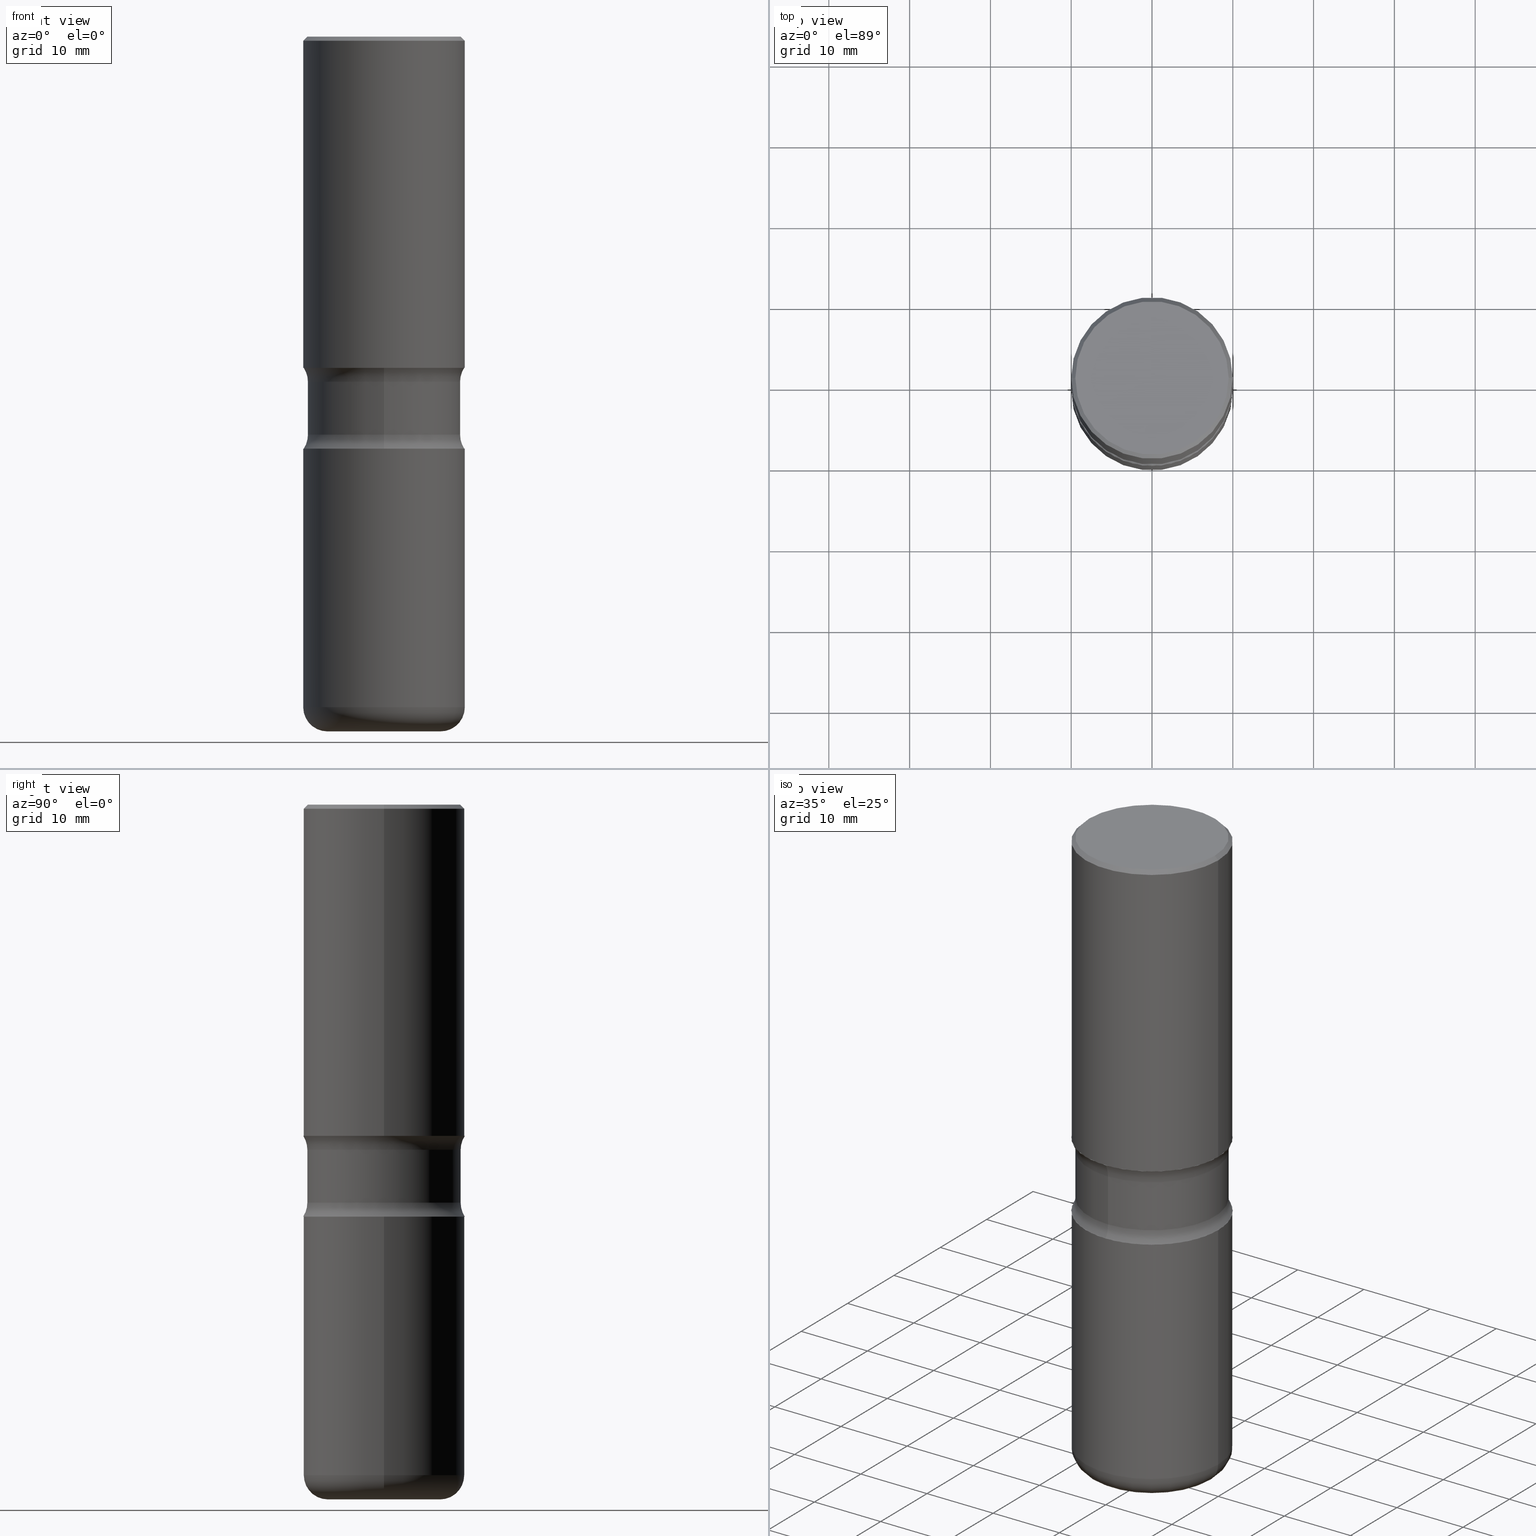
[diagram: canonical four-view strip — front | top / right | iso, engineering-drawing reading convention]
A machine part, canonical four-view strip (front | top / right | iso — engineering-drawing reading convention). The complete STEP part file that produces these views, byte-faithful:
ISO-10303-21;
HEADER;
FILE_DESCRIPTION (( 'STEP AP203' ),
    '1' );
FILE_NAME ('44991.STEP',
    '2024-03-02T04:23:52',
    ( '' ),
    ( '' ),
    'SwSTEP 2.0',
    'SolidWorks 2023',
    '' );
FILE_SCHEMA (( 'CONFIG_CONTROL_DESIGN' ));
ENDSEC;

DATA;
#1 = ORIENTED_EDGE ( 'NONE', *, *, #68, .T. ) ;
#2 = ORIENTED_EDGE ( 'NONE', *, *, #6, .F. ) ;
#3 = AXIS2_PLACEMENT_3D ( 'NONE', #395, #173, #190 ) ;
#4 = VECTOR ( 'NONE', #124, 39.37007874015748143 ) ;
#5 = CARTESIAN_POINT ( 'NONE',  ( -0.3937000000000004385, 2.797406750687517547E-15, -1.936584745033358417E-29 ) ) ;
#6 = EDGE_CURVE ( 'NONE', #76, #44, #375, .T. ) ;
#7 = ORIENTED_EDGE ( 'NONE', *, *, #443, .F. ) ;
#8 = CARTESIAN_POINT ( 'NONE',  ( 3.947231200063429727E-29, -5.635600029026721857E-15, -1.614100000000000090 ) ) ;
#9 = ORIENTED_EDGE ( 'NONE', *, *, #276, .T. ) ;
#10 = DIRECTION ( 'NONE',  ( 6.982962677686265922E-15, 1.000000000000000000, -3.562740511317534079E-15 ) ) ;
#11 = CIRCLE ( 'NONE', #240, 0.2756000000000004002 ) ;
#12 = AXIS2_PLACEMENT_3D ( 'NONE', #302, #79, #160 ) ;
#13 = CIRCLE ( 'NONE', #523, 0.3937000000000003830 ) ;
#14 = DIRECTION ( 'NONE',  ( 0.000000000000000000, 0.000000000000000000, 1.000000000000000000 ) ) ;
#15 = DIRECTION ( 'NONE',  ( -2.445468806185136877E-29, 3.491481338843145188E-15, 1.000000000000000000 ) ) ;
#16 = CC_DESIGN_DATE_AND_TIME_ASSIGNMENT ( #202, #379, ( #234 ) ) ;
#17 = CYLINDRICAL_SURFACE ( 'NONE', #265, 0.3937000000000003830 ) ;
#18 = FACE_OUTER_BOUND ( 'NONE', #341, .T. ) ;
#19 = CIRCLE ( 'NONE', #12, 0.3734999999999999432 ) ;
#20 = DATE_AND_TIME ( #145, #241 ) ;
#21 = DIRECTION ( 'NONE',  ( -1.000000000000000000, 6.982962677686265922E-15, -4.876176775795935793E-29 ) ) ;
#22 = CARTESIAN_POINT ( 'NONE',  ( -0.3937000000000003830, 2.797406750687517153E-15, -1.936584745033358137E-29 ) ) ;
#23 = ADVANCED_FACE ( 'NONE', ( #152 ), #456, .T. ) ;
#24 = DIRECTION ( 'NONE',  ( -2.445468806185136597E-29, 3.491481338843145583E-15, 1.000000000000000000 ) ) ;
#25 = PERSON_AND_ORGANIZATION_ROLE ( 'design_owner' ) ;
#26 = ORIENTED_EDGE ( 'NONE', *, *, #343, .T. ) ;
#27 = DIRECTION ( 'NONE',  ( 6.982962677686265922E-15, 1.000000000000000000, -3.562740511317534079E-15 ) ) ;
#28 = CIRCLE ( 'NONE', #490, 0.3937000000000004940 ) ;
#29 = AXIS2_PLACEMENT_3D ( 'NONE', #98, #262, #447 ) ;
#30 = COORDINATED_UNIVERSAL_TIME_OFFSET ( 5, 0, .BEHIND. ) ;
#31 = DIRECTION ( 'NONE',  ( 2.395708792001990434E-29, -3.562740511317534079E-15, -1.000000000000000000 ) ) ;
#32 = LINE ( 'NONE', #22, #525 ) ;
#33 = SHAPE_DEFINITION_REPRESENTATION ( #116, #389 ) ;
#34 = DIRECTION ( 'NONE',  ( -2.445468806185136597E-29, 3.491481338843145583E-15, 1.000000000000000000 ) ) ;
#35 = COORDINATED_UNIVERSAL_TIME_OFFSET ( 5, 0, .BEHIND. ) ;
#36 = DIRECTION ( 'NONE',  ( 1.000000000000000000, -6.860497997771530774E-15, 4.839926206449336526E-29 ) ) ;
#37 = EDGE_LOOP ( 'NONE', ( #209, #559 ) ) ;
#38 = CARTESIAN_POINT ( 'NONE',  ( 7.991058417971171713E-29, -1.140911357093774644E-14, -3.267700000000000049 ) ) ;
#39 = FACE_OUTER_BOUND ( 'NONE', #476, .T. ) ;
#40 = TOROIDAL_SURFACE ( 'NONE', #346, 0.2756000000000004002, 0.1181000000000000660 ) ;
#41 = AXIS2_PLACEMENT_3D ( 'NONE', #351, #519, #444 ) ;
#42 = AXIS2_PLACEMENT_3D ( 'NONE', #522, #132, #485 ) ;
#43 = ORIENTED_EDGE ( 'NONE', *, *, #398, .F. ) ;
#44 = VERTEX_POINT ( 'NONE', #331 ) ;
#45 = DIRECTION ( 'NONE',  ( 2.445468806185136597E-29, -3.491481338843145583E-15, -1.000000000000000000 ) ) ;
#46 = CARTESIAN_POINT ( 'NONE',  ( 4.890937612370289799E-31, -6.982962677686315028E-17, -0.02000000000000006981 ) ) ;
#47 = ORIENTED_EDGE ( 'NONE', *, *, #52, .F. ) ;
#48 = PERSON_AND_ORGANIZATION_ROLE ( 'classification_officer' ) ;
#49 = EDGE_CURVE ( 'NONE', #167, #304, #211, .T. ) ;
#50 = CIRCLE ( 'NONE', #385, 0.3937000000000002720 ) ;
#51 = PERSON ( 'UNSPECIFIED', 'UNSPECIFIED', 'UNSPECIFIED', ('UNSPECIFIED'), ('UNSPECIFIED'), ('UNSPECIFIED') ) ;
#52 = EDGE_CURVE ( 'NONE', #344, #513, #32, .T. ) ;
#53 = DIRECTION ( 'NONE',  ( 1.000000000000000000, -6.860497997771530774E-15, 4.839926206449336526E-29 ) ) ;
#54 = ORIENTED_EDGE ( 'NONE', *, *, #118, .T. ) ;
#55 = CARTESIAN_POINT ( 'NONE',  ( 4.746788003328820171E-29, -6.767459842010962398E-15, -1.939668069159901087 ) ) ;
#56 = DIRECTION ( 'NONE',  ( 2.438088387897960049E-29, -3.491481338843145188E-15, -1.000000000000000000 ) ) ;
#57 = EDGE_CURVE ( 'NONE', #167, #300, #337, .T. ) ;
#58 = VECTOR ( 'NONE', #409, 39.37007874015748143 ) ;
#59 = LOCAL_TIME ( 23, 23, 52.00000000000000000, #507 ) ;
#60 = CARTESIAN_POINT ( 'NONE',  ( 0.3937000000000003830, -2.749192406205085978E-15, 1.919750796630861853E-29 ) ) ;
#61 = DIRECTION ( 'NONE',  ( 1.000000000000000000, -6.982962677686270655E-15, 0.000000000000000000 ) ) ;
#62 = ORIENTED_EDGE ( 'NONE', *, *, #453, .F. ) ;
#63 = DIRECTION ( 'NONE',  ( 1.000000000000000000, -6.982962677686266711E-15, 4.876212485538972316E-29 ) ) ;
#64 = ADVANCED_FACE ( 'NONE', ( #496 ), #17, .T. ) ;
#65 = DIRECTION ( 'NONE',  ( 2.395708792001990434E-29, -3.562740511317534079E-15, -1.000000000000000000 ) ) ;
#66 = PERSON_AND_ORGANIZATION_ROLE ( 'design_supplier' ) ;
#67 = DIRECTION ( 'NONE',  ( -2.445468806185136597E-29, 3.491481338843145583E-15, 1.000000000000000000 ) ) ;
#68 = EDGE_CURVE ( 'NONE', #89, #364, #28, .T. ) ;
#69 = AXIS2_PLACEMENT_3D ( 'NONE', #366, #67, #418 ) ;
#70 = AXIS2_PLACEMENT_3D ( 'NONE', #181, #314, #131 ) ;
#71 = CARTESIAN_POINT ( 'NONE',  ( -3.131554243005659264E-46, 4.471029511141341874E-32, 1.280553747030123384E-17 ) ) ;
#72 = VERTEX_POINT ( 'NONE', #499 ) ;
#73 = DIRECTION ( 'NONE',  ( 1.000000000000000000, -6.982962677686266711E-15, 0.000000000000000000 ) ) ;
#74 = DIRECTION ( 'NONE',  ( -6.982962677686265133E-15, -1.000000000000000000, 0.000000000000000000 ) ) ;
#75 = PERSON_AND_ORGANIZATION ( #51, #154 ) ;
#76 = VERTEX_POINT ( 'NONE', #112 ) ;
#77 = PRODUCT ( '44991', '44991', '', ( #526 ) ) ;
#78 = LOCAL_TIME ( 23, 23, 52.00000000000000000, #35 ) ;
#79 = DIRECTION ( 'NONE',  ( 2.395708792001990434E-29, -3.562740511317534079E-15, -1.000000000000000000 ) ) ;
#80 = DIRECTION ( 'NONE',  ( -1.000000000000000000, 6.982962677686266711E-15, 0.000000000000000000 ) ) ;
#81 = CARTESIAN_POINT ( 'NONE',  ( -2.562396002167584581E-15, -0.3735000000000119336, -3.385799999999999255 ) ) ;
#82 = ORIENTED_EDGE ( 'NONE', *, *, #183, .F. ) ;
#83 = CALENDAR_DATE ( 2024, 1, 3 ) ;
#84 = CC_DESIGN_DATE_AND_TIME_ASSIGNMENT ( #129, #448, ( #376 ) ) ;
#85 = ORIENTED_EDGE ( 'NONE', *, *, #256, .T. ) ;
#86 = AXIS2_PLACEMENT_3D ( 'NONE', #100, #518, #263 ) ;
#87 = CARTESIAN_POINT ( 'NONE',  ( 4.910012269058518206E-29, -7.010196232129268988E-15, -2.007800000000000473 ) ) ;
#88 = EDGE_LOOP ( 'NONE', ( #7, #43, #436, #175 ) ) ;
#89 = VERTEX_POINT ( 'NONE', #464 ) ;
#90 = ORIENTED_EDGE ( 'NONE', *, *, #52, .T. ) ;
#91 = ORIENTED_EDGE ( 'NONE', *, *, #506, .F. ) ;
#92 = ADVANCED_FACE ( 'NONE', ( #417 ), #249, .F. ) ;
#93 = DIRECTION ( 'NONE',  ( 2.395708792001990434E-29, -3.562740511317534079E-15, -1.000000000000000000 ) ) ;
#94 = ORIENTED_EDGE ( 'NONE', *, *, #343, .F. ) ;
#95 = VECTOR ( 'NONE', #277, 39.37007874015748143 ) ;
#96 = CC_DESIGN_PERSON_AND_ORGANIZATION_ASSIGNMENT ( #339, #271, ( #544 ) ) ;
#97 = VECTOR ( 'NONE', #244, 39.37007874015748143 ) ;
#98 = CARTESIAN_POINT ( 'NONE',  ( 8.279868283981636714E-29, -1.182145751705512373E-14, -3.385800000000000143 ) ) ;
#99 = DIRECTION ( 'NONE',  ( -0.7071067811865459074, 2.468850131082240100E-15, -0.7071067811865491270 ) ) ;
#100 = CARTESIAN_POINT ( 'NONE',  ( 7.991058417971171713E-29, -1.140911357093774644E-14, -3.267700000000000049 ) ) ;
#101 = CARTESIAN_POINT ( 'NONE',  ( 2.608136560115860833E-15, 0.3734999999999940590, -1.682231930840100809 ) ) ;
#102 = AXIS2_PLACEMENT_3D ( 'NONE', #287, #56, #21 ) ;
#103 = VECTOR ( 'NONE', #99, 39.37007874015748143 ) ;
#104 = DIRECTION ( 'NONE',  ( -2.445468806185136597E-29, 3.491481338843145583E-15, 1.000000000000000000 ) ) ;
#105 = DIRECTION ( 'NONE',  ( -1.000000000000000000, 6.982962677686265922E-15, -4.876176775795935793E-29 ) ) ;
#106 = ADVANCED_FACE ( 'NONE', ( #111 ), #207, .T. ) ;
#107 = DIRECTION ( 'NONE',  ( -6.982962677686266711E-15, -1.000000000000000000, 3.491481338843145583E-15 ) ) ;
#108 = DIRECTION ( 'NONE',  ( 1.000000000000000000, -6.982962677686266711E-15, 4.876176775795935793E-29 ) ) ;
#109 = CARTESIAN_POINT ( 'NONE',  ( 8.279868283981636714E-29, -1.182145751705512373E-14, -3.385800000000000143 ) ) ;
#110 = APPROVAL_DATE_TIME ( #20, #193 ) ;
#111 = FACE_OUTER_BOUND ( 'NONE', #352, .T. ) ;
#112 = CARTESIAN_POINT ( 'NONE',  ( 0.3937000000000003830, -9.759388638334355360E-15, -2.007800000000000473 ) ) ;
#113 = AXIS2_PLACEMENT_3D ( 'NONE', #452, #188, #406 ) ;
#114 = FACE_OUTER_BOUND ( 'NONE', #88, .T. ) ;
#115 = CARTESIAN_POINT ( 'NONE',  ( 8.211298984437260765E-29, -1.191965265672483002E-14, -3.385800000000000143 ) ) ;
#116 = PRODUCT_DEFINITION_SHAPE ( 'NONE', 'NONE',  #234 ) ;
#117 = AXIS2_PLACEMENT_3D ( 'NONE', #528, #65, #407 ) ;
#118 = EDGE_CURVE ( 'NONE', #72, #89, #384, .T. ) ;
#119 = CARTESIAN_POINT ( 'NONE',  ( -2.700978061722613781E-15, -0.3937000000000058231, -1.614099999999998536 ) ) ;
#120 = ORIENTED_EDGE ( 'NONE', *, *, #148, .F. ) ;
#121 = EDGE_LOOP ( 'NONE', ( #47, #221, #85, #381 ) ) ;
#122 = TOROIDAL_SURFACE ( 'NONE', #279, 0.4985000000000001097, 0.1250000000000001388 ) ;
#123 = ORIENTED_EDGE ( 'NONE', *, *, #453, .T. ) ;
#124 = DIRECTION ( 'NONE',  ( -2.445468806185136877E-29, 3.491481338843145188E-15, 1.000000000000000000 ) ) ;
#125 = ORIENTED_EDGE ( 'NONE', *, *, #408, .F. ) ;
#126 = CARTESIAN_POINT ( 'NONE',  ( -2.631687031945119691E-15, -0.3735000000000057718, -1.682231930840098144 ) ) ;
#127 = APPLICATION_CONTEXT ( 'configuration controlled 3d designs of mechanical parts and assemblies' ) ;
#128 = DIRECTION ( 'NONE',  ( 6.982962677686265133E-15, 1.000000000000000000, -3.469453890861392812E-15 ) ) ;
#129 = DATE_AND_TIME ( #350, #516 ) ;
#130 = AXIS2_PLACEMENT_3D ( 'NONE', #185, #107, #532 ) ;
#131 = DIRECTION ( 'NONE',  ( -6.982962677686268288E-15, -1.000000000000000000, 0.000000000000000000 ) ) ;
#132 = DIRECTION ( 'NONE',  ( 2.395708792001990434E-29, -3.562740511317534079E-15, -1.000000000000000000 ) ) ;
#133 = TOROIDAL_SURFACE ( 'NONE', #422, 0.4985000000000001097, 0.1250000000000001665 ) ;
#134 = CIRCLE ( 'NONE', #153, 0.1181000000000001077 ) ;
#135 = UNCERTAINTY_MEASURE_WITH_UNIT (LENGTH_MEASURE( 1.000000000000000082E-05 ), #362, 'distance_accuracy_value', 'NONE');
#136 = CARTESIAN_POINT ( 'NONE',  ( -2.631687031945112197E-15, -0.3735000000000067710, -1.939668069159899533 ) ) ;
#137 = LINE ( 'NONE', #402, #501 ) ;
#138 = ADVANCED_FACE ( 'NONE', ( #272 ), #498, .T. ) ;
#139 = CARTESIAN_POINT ( 'NONE',  ( 4.910012269058518206E-29, -7.010196232129268988E-15, -2.007800000000000473 ) ) ;
#140 = FACE_OUTER_BOUND ( 'NONE', #176, .T. ) ;
#141 = DIRECTION ( 'NONE',  ( -2.395708792001989873E-29, 3.562740511317534079E-15, 1.000000000000000000 ) ) ;
#142 = ORIENTED_EDGE ( 'NONE', *, *, #213, .F. ) ;
#143 = DATE_AND_TIME ( #83, #469 ) ;
#144 = FACE_OUTER_BOUND ( 'NONE', #260, .T. ) ;
#145 = CALENDAR_DATE ( 2024, 1, 3 ) ;
#146 = ORIENTED_EDGE ( 'NONE', *, *, #289, .F. ) ;
#147 = DIRECTION ( 'NONE',  ( 1.000000000000000000, -6.982962677686269866E-15, 0.000000000000000000 ) ) ;
#148 = EDGE_CURVE ( 'NONE', #304, #167, #459, .T. ) ;
#149 = DIRECTION ( 'NONE',  ( -2.445468806185136597E-29, 3.491481338843145583E-15, 1.000000000000000000 ) ) ;
#150 = APPROVAL_ROLE ( '' ) ;
#151 = DIRECTION ( 'NONE',  ( 1.000000000000000000, -6.982962677686266711E-15, 4.876212485538972316E-29 ) ) ;
#152 = FACE_OUTER_BOUND ( 'NONE', #413, .T. ) ;
#153 = AXIS2_PLACEMENT_3D ( 'NONE', #219, #397, #317 ) ;
#154 = ORGANIZATION ( 'UNSPECIFIED', 'UNSPECIFIED', '' ) ;
#155 = DIRECTION ( 'NONE',  ( 2.395708792001990434E-29, -3.562740511317534079E-15, -1.000000000000000000 ) ) ;
#156 = CARTESIAN_POINT ( 'NONE',  ( 0.000000000000000000, 0.000000000000000000, 0.000000000000000000 ) ) ;
#157 = APPROVAL_STATUS ( 'not_yet_approved' ) ;
#158 = DIRECTION ( 'NONE',  ( -2.445468806185136877E-29, 3.491481338843145188E-15, 1.000000000000000000 ) ) ;
#159 = ADVANCED_FACE ( 'NONE', ( #140 ), #324, .T. ) ;
#160 = DIRECTION ( 'NONE',  ( 6.982962677686264344E-15, 1.000000000000000000, -3.657092360996336845E-15 ) ) ;
#161 = CALENDAR_DATE ( 2024, 1, 3 ) ;
#162 = DIRECTION ( 'NONE',  ( -1.000000000000000000, 6.982962677686265922E-15, -4.883557194083112901E-29 ) ) ;
#163 = EDGE_CURVE ( 'NONE', #510, #421, #13, .T. ) ;
#164 = ORIENTED_EDGE ( 'NONE', *, *, #348, .F. ) ;
#165 = CIRCLE ( 'NONE', #483, 0.3937000000000002164 ) ;
#166 = ORIENTED_EDGE ( 'NONE', *, *, #398, .T. ) ;
#167 = VERTEX_POINT ( 'NONE', #546 ) ;
#168 = EDGE_LOOP ( 'NONE', ( #345, #90, #433, #446 ) ) ;
#169 = APPROVAL ( #184, 'UNSPECIFIED' ) ;
#170 = CIRCLE ( 'NONE', #450, 0.3937000000000004385 ) ;
#171 = AXIS2_PLACEMENT_3D ( 'NONE', #474, #162, #74 ) ;
#172 = CC_DESIGN_SECURITY_CLASSIFICATION ( #376, ( #544 ) ) ;
#173 = DIRECTION ( 'NONE',  ( 2.395708792001990434E-29, -3.562740511317534079E-15, -1.000000000000000000 ) ) ;
#174 = COORDINATED_UNIVERSAL_TIME_OFFSET ( 5, 0, .BEHIND. ) ;
#175 = ORIENTED_EDGE ( 'NONE', *, *, #365, .T. ) ;
#176 = EDGE_LOOP ( 'NONE', ( #62, #292, #253, #517 ) ) ;
#177 = ADVANCED_FACE ( 'NONE', ( #462 ), #40, .T. ) ;
#178 = AXIS2_PLACEMENT_3D ( 'NONE', #109, #194, #369 ) ;
#179 = AXIS2_PLACEMENT_3D ( 'NONE', #360, #232, #227 ) ;
#180 = DIRECTION ( 'NONE',  ( 1.000000000000000000, 0.000000000000000000, 0.000000000000000000 ) ) ;
#181 = CARTESIAN_POINT ( 'NONE',  ( 3.481006894826652454E-15, 0.4984999999999933928, -1.939668069159902863 ) ) ;
#182 = ADVANCED_FACE ( 'NONE', ( #540 ), #218, .F. ) ;
#183 = EDGE_CURVE ( 'NONE', #44, #76, #420, .T. ) ;
#184 = APPROVAL_STATUS ( 'not_yet_approved' ) ;
#185 = CARTESIAN_POINT ( 'NONE',  ( 0.2756000000000004002, -1.333361808490808455E-14, -3.267700000000000049 ) ) ;
#186 = CARTESIAN_POINT ( 'NONE',  ( 0.000000000000000000, 0.000000000000000000, 0.000000000000000000 ) ) ;
#187 = PLANE ( 'NONE',  #354 ) ;
#188 = DIRECTION ( 'NONE',  ( -2.445468806185136597E-29, 3.491481338843145583E-15, 1.000000000000000000 ) ) ;
#189 = CARTESIAN_POINT ( 'NONE',  ( 7.991058417971169471E-29, -1.140911357093774486E-14, -3.267699999999999605 ) ) ;
#190 = DIRECTION ( 'NONE',  ( 6.982962677686265922E-15, 1.000000000000000000, -2.925673888797068924E-15 ) ) ;
#191 = ADVANCED_FACE ( 'NONE', ( #530 ), #246, .F. ) ;
#192 = CARTESIAN_POINT ( 'NONE',  ( 2.608136560115867538E-15, 0.3734999999999932263, -1.939668069159902419 ) ) ;
#193 = APPROVAL ( #419, 'UNSPECIFIED' ) ;
#194 = DIRECTION ( 'NONE',  ( 2.438088387897960049E-29, -3.491481338843145188E-15, -1.000000000000000000 ) ) ;
#195 = CLOSED_SHELL ( 'NONE', ( #23, #259, #355, #177, #520, #548 ) ) ;
#196 = AXIS2_PLACEMENT_3D ( 'NONE', #512, #342, #296 ) ;
#197 = FACE_OUTER_BOUND ( 'NONE', #542, .T. ) ;
#198 = DIRECTION ( 'NONE',  ( 2.395708792001990434E-29, -3.562740511317534079E-15, -1.000000000000000000 ) ) ;
#199 = DIRECTION ( 'NONE',  ( 1.000000000000000000, -6.982962677686269077E-15, 0.000000000000000000 ) ) ;
#200 = DIMENSIONAL_EXPONENTS ( 1.000000000000000000, 0.000000000000000000, 0.000000000000000000, 0.000000000000000000, 0.000000000000000000, 0.000000000000000000, 0.000000000000000000 ) ;
#201 = DIRECTION ( 'NONE',  ( 2.395708792001990434E-29, -3.562740511317534079E-15, -1.000000000000000000 ) ) ;
#202 = DATE_AND_TIME ( #377, #78 ) ;
#203 = ADVANCED_FACE ( 'NONE', ( #322 ), #122, .F. ) ;
#204 = VERTEX_POINT ( 'NONE', #101 ) ;
#205 = EDGE_LOOP ( 'NONE', ( #477, #504, #541, #308 ) ) ;
#206 = CARTESIAN_POINT ( 'NONE',  ( 4.890937612370289799E-31, -6.982962677686315028E-17, -0.02000000000000006981 ) ) ;
#207 = CONICAL_SURFACE ( 'NONE', #543, 0.3937000000000002164, 0.7853981633974460586 ) ;
#208 = CYLINDRICAL_SURFACE ( 'NONE', #41, 0.3937000000000004385 ) ;
#209 = ORIENTED_EDGE ( 'NONE', *, *, #163, .T. ) ;
#210 = CIRCLE ( 'NONE', #171, 0.1250000000000001665 ) ;
#211 = CIRCLE ( 'NONE', #427, 0.3737000000000002542 ) ;
#212 = ORIENTED_EDGE ( 'NONE', *, *, #264, .F. ) ;
#213 = EDGE_CURVE ( 'NONE', #282, #72, #11, .T. ) ;
#214 = EDGE_LOOP ( 'NONE', ( #441, #560 ) ) ;
#215 = DIRECTION ( 'NONE',  ( -2.445468806185136597E-29, 3.491481338843145583E-15, 1.000000000000000000 ) ) ;
#216 = AXIS2_PLACEMENT_3D ( 'NONE', #87, #93, #128 ) ;
#217 = EDGE_LOOP ( 'NONE', ( #555, #9, #396, #509 ) ) ;
#218 = PLANE ( 'NONE',  #102 ) ;
#219 = CARTESIAN_POINT ( 'NONE',  ( -0.2756000000000004002, -9.450857791182906696E-15, -3.267700000000000049 ) ) ;
#220 = EDGE_CURVE ( 'NONE', #89, #76, #137, .T. ) ;
#221 = ORIENTED_EDGE ( 'NONE', *, *, #527, .T. ) ;
#222 = DIRECTION ( 'NONE',  ( -2.445468806185136597E-29, 3.491481338843145583E-15, 1.000000000000000000 ) ) ;
#223 = APPROVAL_ROLE ( '' ) ;
#224 =( LENGTH_UNIT ( ) NAMED_UNIT ( * ) SI_UNIT ( $, .METRE. ) );
#225 = DIRECTION ( 'NONE',  ( 6.982962677686265922E-15, 1.000000000000000000, -3.657092360996336056E-15 ) ) ;
#226 = CC_DESIGN_APPROVAL ( #193, ( #234 ) ) ;
#227 = DIRECTION ( 'NONE',  ( 6.982962677686265922E-15, 1.000000000000000000, -3.562740511317534079E-15 ) ) ;
#228 = DIRECTION ( 'NONE',  ( 1.000000000000000000, -6.982962677686265922E-15, 0.000000000000000000 ) ) ;
#229 = EDGE_LOOP ( 'NONE', ( #303, #298, #54, #94 ) ) ;
#230 = CARTESIAN_POINT ( 'NONE',  ( 0.3937000000000002164, -2.770807688499516917E-15, -0.02000000000000006981 ) ) ;
#231 = SECURITY_CLASSIFICATION_LEVEL ( 'unclassified' ) ;
#232 = DIRECTION ( 'NONE',  ( 2.395708792001990434E-29, -3.562740511317534079E-15, -1.000000000000000000 ) ) ;
#233 = AXIS2_PLACEMENT_3D ( 'NONE', #8, #222, #399 ) ;
#234 = PRODUCT_DEFINITION ( 'UNKNOWN', '', #544, #414 ) ;
#235 = COORDINATED_UNIVERSAL_TIME_OFFSET ( 5, 0, .BEHIND. ) ;
#236 = CC_DESIGN_PERSON_AND_ORGANIZATION_ASSIGNMENT ( #392, #48, ( #376 ) ) ;
#237 = DIRECTION ( 'NONE',  ( -2.438088387897960049E-29, 3.491481338843145188E-15, 1.000000000000000000 ) ) ;
#238 = LINE ( 'NONE', #482, #103 ) ;
#239 = DIRECTION ( 'NONE',  ( -2.445468806185136597E-29, 3.491481338843145583E-15, 1.000000000000000000 ) ) ;
#240 = AXIS2_PLACEMENT_3D ( 'NONE', #405, #104, #61 ) ;
#241 = LOCAL_TIME ( 23, 23, 52.00000000000000000, #30 ) ;
#242 = ADVANCED_FACE ( 'NONE', ( #318 ), #270, .F. ) ;
#243 = ORIENTED_EDGE ( 'NONE', *, *, #326, .F. ) ;
#244 = DIRECTION ( 'NONE',  ( 2.395708792001990154E-29, -3.562740511317534079E-15, -1.000000000000000000 ) ) ;
#245 = ORIENTED_EDGE ( 'NONE', *, *, #443, .T. ) ;
#246 = TOROIDAL_SURFACE ( 'NONE', #179, 0.4985000000000001097, 0.1250000000000001665 ) ;
#247 = EDGE_CURVE ( 'NONE', #416, #344, #170, .T. ) ;
#248 = CARTESIAN_POINT ( 'NONE',  ( 2.749192406205125026E-15, 0.3936999999999947764, -1.614100000000001867 ) ) ;
#249 = TOROIDAL_SURFACE ( 'NONE', #552, 0.4985000000000001097, 0.1250000000000001388 ) ;
#250 = VERTEX_POINT ( 'NONE', #136 ) ;
#251 = FACE_OUTER_BOUND ( 'NONE', #325, .T. ) ;
#252 = DIRECTION ( 'NONE',  ( 6.982962677686265922E-15, 1.000000000000000000, -3.562740511317534079E-15 ) ) ;
#253 = ORIENTED_EDGE ( 'NONE', *, *, #408, .T. ) ;
#254 = DIRECTION ( 'NONE',  ( -1.000000000000000000, 6.982962677686266711E-15, 0.000000000000000000 ) ) ;
#255 = ORIENTED_EDGE ( 'NONE', *, *, #220, .F. ) ;
#256 = EDGE_CURVE ( 'NONE', #416, #300, #315, .T. ) ;
#257 = ORIENTED_EDGE ( 'NONE', *, *, #506, .T. ) ;
#258 = AXIS2_PLACEMENT_3D ( 'NONE', #454, #149, #465 ) ;
#259 = ADVANCED_FACE ( 'NONE', ( #486 ), #388, .T. ) ;
#260 = EDGE_LOOP ( 'NONE', ( #146, #142 ) ) ;
#261 = ORIENTED_EDGE ( 'NONE', *, *, #294, .T. ) ;
#262 = DIRECTION ( 'NONE',  ( -2.445468806185136597E-29, 3.491481338843145583E-15, 1.000000000000000000 ) ) ;
#263 = DIRECTION ( 'NONE',  ( 1.000000000000000000, -6.982962677686264344E-15, 4.883557194083112340E-29 ) ) ;
#264 = EDGE_CURVE ( 'NONE', #481, #250, #403, .T. ) ;
#265 = AXIS2_PLACEMENT_3D ( 'NONE', #186, #533, #108 ) ;
#266 = CARTESIAN_POINT ( 'NONE',  ( -0.3737000000000002542, 2.644447966039791030E-15, 1.280553747028286201E-17 ) ) ;
#267 = APPROVAL_PERSON_ORGANIZATION ( #316, #169, #223 ) ;
#268 = DIRECTION ( 'NONE',  ( -2.445468806185136597E-29, 3.491481338843145583E-15, 1.000000000000000000 ) ) ;
#269 = APPROVAL ( #157, 'UNSPECIFIED' ) ;
#270 = PLANE ( 'NONE',  #330 ) ;
#271 = PERSON_AND_ORGANIZATION_ROLE ( 'creator' ) ;
#272 = FACE_OUTER_BOUND ( 'NONE', #121, .T. ) ;
#273 = VERTEX_POINT ( 'NONE', #126 ) ;
#274 = PLANE ( 'NONE',  #411 ) ;
#275 = CARTESIAN_POINT ( 'NONE',  ( 4.910012269058518206E-29, -7.010196232129268988E-15, -2.007800000000000473 ) ) ;
#276 = EDGE_CURVE ( 'NONE', #282, #364, #134, .T. ) ;
#277 = DIRECTION ( 'NONE',  ( 0.7071067811865459074, -7.319954787623249734E-15, -0.7071067811865491270 ) ) ;
#278 = AXIS2_PLACEMENT_3D ( 'NONE', #432, #45, #254 ) ;
#279 = AXIS2_PLACEMENT_3D ( 'NONE', #493, #449, #10 ) ;
#280 = DIRECTION ( 'NONE',  ( 6.860497997771532351E-15, 1.000000000000000000, 0.000000000000000000 ) ) ;
#281 = PERSON_AND_ORGANIZATION_ROLE ( 'creator' ) ;
#282 = VERTEX_POINT ( 'NONE', #353 ) ;
#283 = ORIENTED_EDGE ( 'NONE', *, *, #527, .F. ) ;
#284 = APPROVAL_DATE_TIME ( #143, #169 ) ;
#285 = DIRECTION ( 'NONE',  ( 6.982962677686265922E-15, 1.000000000000000000, -2.925673888797068924E-15 ) ) ;
#286 = DIRECTION ( 'NONE',  ( -2.445468806185136597E-29, 3.491481338843145583E-15, 1.000000000000000000 ) ) ;
#287 = CARTESIAN_POINT ( 'NONE',  ( 2.609533152651358987E-15, 0.3737000000000002542, -1.298363807590533784E-15 ) ) ;
#288 = EDGE_CURVE ( 'NONE', #273, #204, #333, .T. ) ;
#289 = EDGE_CURVE ( 'NONE', #72, #282, #299, .T. ) ;
#290 = APPLICATION_CONTEXT ( 'configuration controlled 3d designs of mechanical parts and assemblies' ) ;
#291 = CIRCLE ( 'NONE', #117, 0.3937000000000002720 ) ;
#292 = ORIENTED_EDGE ( 'NONE', *, *, #288, .T. ) ;
#293 = ORIENTED_EDGE ( 'NONE', *, *, #57, .F. ) ;
#294 = EDGE_CURVE ( 'NONE', #250, #481, #461, .T. ) ;
#295 = CC_DESIGN_PERSON_AND_ORGANIZATION_ASSIGNMENT ( #75, #25, ( #77 ) ) ;
#296 = DIRECTION ( 'NONE',  ( 6.982962677686265922E-15, 1.000000000000000000, -3.562740511317534079E-15 ) ) ;
#297 = ORIENTED_EDGE ( 'NONE', *, *, #247, .F. ) ;
#298 = ORIENTED_EDGE ( 'NONE', *, *, #213, .T. ) ;
#299 = CIRCLE ( 'NONE', #29, 0.2756000000000004002 ) ;
#300 = VERTEX_POINT ( 'NONE', #401 ) ;
#301 = APPROVAL_PERSON_ORGANIZATION ( #549, #269, #150 ) ;
#302 = CARTESIAN_POINT ( 'NONE',  ( 4.130045983377031678E-29, -5.850281682941861671E-15, -1.682231930840099476 ) ) ;
#303 = ORIENTED_EDGE ( 'NONE', *, *, #276, .F. ) ;
#304 = VERTEX_POINT ( 'NONE', #266 ) ;
#305 = CYLINDRICAL_SURFACE ( 'NONE', #3, 0.3734999999999999987 ) ;
#306 = ORIENTED_EDGE ( 'NONE', *, *, #435, .F. ) ;
#307 = DIRECTION ( 'NONE',  ( 1.000000000000000000, -6.982962677686266711E-15, 0.000000000000000000 ) ) ;
#308 = ORIENTED_EDGE ( 'NONE', *, *, #264, .T. ) ;
#309 = EDGE_CURVE ( 'NONE', #204, #426, #210, .T. ) ;
#310 = CARTESIAN_POINT ( 'NONE',  ( -3.419958251889067047E-15, -0.4985000000000058828, -1.682231930840097700 ) ) ;
#311 = CONICAL_SURFACE ( 'NONE', #278, 0.3937000000000002164, 0.7853981633974460586 ) ;
#312 = AXIS2_PLACEMENT_3D ( 'NONE', #511, #442, #359 ) ;
#313 = DIRECTION ( 'NONE',  ( 1.000000000000000000, -6.982962677686265922E-15, 4.876176775795935793E-29 ) ) ;
#314 = DIRECTION ( 'NONE',  ( -1.000000000000000000, 6.982962677686265922E-15, -4.883557194083112901E-29 ) ) ;
#315 = LINE ( 'NONE', #60, #58 ) ;
#316 = PERSON_AND_ORGANIZATION ( #51, #154 ) ;
#317 = DIRECTION ( 'NONE',  ( -1.000000000000000000, 7.105427357600997914E-15, 0.000000000000000000 ) ) ;
#318 = FACE_OUTER_BOUND ( 'NONE', #37, .T. ) ;
#319 = CC_DESIGN_PERSON_AND_ORGANIZATION_ASSIGNMENT ( #539, #281, ( #234 ) ) ;
#320 = CIRCLE ( 'NONE', #258, 0.3937000000000004940 ) ;
#321 = AXIS2_PLACEMENT_3D ( 'NONE', #404, #14, #180 ) ;
#322 = FACE_OUTER_BOUND ( 'NONE', #205, .T. ) ;
#323 =( NAMED_UNIT ( * ) PLANE_ANGLE_UNIT ( ) SI_UNIT ( $, .RADIAN. ) );
#324 = CYLINDRICAL_SURFACE ( 'NONE', #410, 0.3734999999999999987 ) ;
#325 = EDGE_LOOP ( 'NONE', ( #387, #494, #390, #243 ) ) ;
#326 = EDGE_CURVE ( 'NONE', #304, #513, #238, .T. ) ;
#327 = ORIENTED_EDGE ( 'NONE', *, *, #348, .T. ) ;
#328 = DIRECTION ( 'NONE',  ( 6.982962677686265922E-15, 1.000000000000000000, -3.469453890861393601E-15 ) ) ;
#329 = DATE_AND_TIME ( #161, #59 ) ;
#330 = AXIS2_PLACEMENT_3D ( 'NONE', #357, #141, #455 ) ;
#331 = CARTESIAN_POINT ( 'NONE',  ( -0.3937000000000003830, -6.412248150845989772E-15, -2.007800000000000473 ) ) ;
#332 =( GEOMETRIC_REPRESENTATION_CONTEXT ( 3 ) GLOBAL_UNCERTAINTY_ASSIGNED_CONTEXT ( ( #135 ) ) GLOBAL_UNIT_ASSIGNED_CONTEXT ( ( #362, #323, #400 ) ) REPRESENTATION_CONTEXT ( 'NONE', 'WORKASPACE' ) );
#333 = CIRCLE ( 'NONE', #42, 0.3734999999999999432 ) ;
#334 = CARTESIAN_POINT ( 'NONE',  ( 3.947231200063429727E-29, -5.635600029026721857E-15, -1.614100000000000090 ) ) ;
#335 = APPROVAL_DATE_TIME ( #329, #269 ) ;
#336 = DIRECTION ( 'NONE',  ( 2.445468806185136597E-29, -3.491481338843145583E-15, -1.000000000000000000 ) ) ;
#337 = LINE ( 'NONE', #230, #95 ) ;
#338 = LINE ( 'NONE', #472, #553 ) ;
#339 = PERSON_AND_ORGANIZATION ( #51, #154 ) ;
#340 = CIRCLE ( 'NONE', #216, 0.3937000000000003830 ) ;
#341 = EDGE_LOOP ( 'NONE', ( #363, #424 ) ) ;
#342 = DIRECTION ( 'NONE',  ( 2.395708792001989873E-29, -3.562740511317534079E-15, -1.000000000000000000 ) ) ;
#343 = EDGE_CURVE ( 'NONE', #364, #89, #320, .T. ) ;
#344 = VERTEX_POINT ( 'NONE', #415 ) ;
#345 = ORIENTED_EDGE ( 'NONE', *, *, #247, .T. ) ;
#346 = AXIS2_PLACEMENT_3D ( 'NONE', #38, #34, #438 ) ;
#347 = EDGE_LOOP ( 'NONE', ( #297, #283 ) ) ;
#348 = EDGE_CURVE ( 'NONE', #429, #426, #291, .T. ) ;
#349 = CARTESIAN_POINT ( 'NONE',  ( -3.419958251889060736E-15, -0.4985000000000067710, -1.939668069159899089 ) ) ;
#350 = CALENDAR_DATE ( 2024, 1, 3 ) ;
#351 = CARTESIAN_POINT ( 'NONE',  ( 0.000000000000000000, 0.000000000000000000, 0.000000000000000000 ) ) ;
#352 = EDGE_LOOP ( 'NONE', ( #293, #120, #514, #437 ) ) ;
#353 = CARTESIAN_POINT ( 'NONE',  ( -0.2756000000000004002, -9.237454278775255057E-15, -3.385800000000000143 ) ) ;
#354 = AXIS2_PLACEMENT_3D ( 'NONE', #139, #495, #105 ) ;
#355 = ADVANCED_FACE ( 'NONE', ( #144 ), #497, .T. ) ;
#356 = AXIS2_PLACEMENT_3D ( 'NONE', #71, #374, #151 ) ;
#357 = CARTESIAN_POINT ( 'NONE',  ( 4.910012269058518206E-29, -7.010196232129268988E-15, -2.007800000000000473 ) ) ;
#358 = APPLICATION_PROTOCOL_DEFINITION ( 'international standard', 'config_control_design', 1994, #127 ) ;
#359 = DIRECTION ( 'NONE',  ( 6.982962677686265922E-15, 1.000000000000000000, -3.657092360996336056E-15 ) ) ;
#360 = CARTESIAN_POINT ( 'NONE',  ( 4.161536693090229815E-29, -5.805185194292673437E-15, -1.682231930840099476 ) ) ;
#361 = AXIS2_PLACEMENT_3D ( 'NONE', #349, #36, #391 ) ;
#362 =( CONVERSION_BASED_UNIT ( 'INCH', #529 ) LENGTH_UNIT ( ) NAMED_UNIT ( #200 ) );
#363 = ORIENTED_EDGE ( 'NONE', *, *, #6, .T. ) ;
#364 = VERTEX_POINT ( 'NONE', #545 ) ;
#365 = EDGE_CURVE ( 'NONE', #426, #429, #50, .T. ) ;
#366 = CARTESIAN_POINT ( 'NONE',  ( 0.000000000000000000, 0.000000000000000000, 0.000000000000000000 ) ) ;
#367 = EDGE_LOOP ( 'NONE', ( #166, #123, #212, #125 ) ) ;
#368 = ORIENTED_EDGE ( 'NONE', *, *, #220, .T. ) ;
#369 = DIRECTION ( 'NONE',  ( -1.000000000000000000, 6.982962677686265922E-15, -4.876176775795935793E-29 ) ) ;
#370 = APPLICATION_PROTOCOL_DEFINITION ( 'international standard', 'config_control_design', 1994, #290 ) ;
#371 = CARTESIAN_POINT ( 'NONE',  ( 4.791088738936066021E-29, -6.704018667180103754E-15, -1.939668069159901087 ) ) ;
#372 = CARTESIAN_POINT ( 'NONE',  ( 4.910012269058518206E-29, -7.010196232129268988E-15, -2.007800000000000473 ) ) ;
#373 = PERSON_AND_ORGANIZATION ( #51, #154 ) ;
#374 = DIRECTION ( 'NONE',  ( -2.445468806185136597E-29, 3.491481338843145583E-15, 1.000000000000000000 ) ) ;
#375 = CIRCLE ( 'NONE', #430, 0.3937000000000003830 ) ;
#376 = SECURITY_CLASSIFICATION ( '', '', #231 ) ;
#377 = CALENDAR_DATE ( 2024, 1, 3 ) ;
#378 = DIRECTION ( 'NONE',  ( 6.982962677686265133E-15, 1.000000000000000000, -3.469453890861392812E-15 ) ) ;
#379 = DATE_TIME_ROLE ( 'creation_date' ) ;
#380 = CARTESIAN_POINT ( 'NONE',  ( -0.3937000000000002164, 2.679362779428221496E-15, -0.02000000000000006981 ) ) ;
#381 = ORIENTED_EDGE ( 'NONE', *, *, #471, .F. ) ;
#382 = FACE_OUTER_BOUND ( 'NONE', #347, .T. ) ;
#383 = PLANE ( 'NONE',  #196 ) ;
#384 = CIRCLE ( 'NONE', #130, 0.1181000000000001077 ) ;
#385 = AXIS2_PLACEMENT_3D ( 'NONE', #538, #155, #328 ) ;
#386 = ADVANCED_FACE ( 'NONE', ( #114 ), #133, .F. ) ;
#387 = ORIENTED_EDGE ( 'NONE', *, *, #49, .F. ) ;
#388 = TOROIDAL_SURFACE ( 'NONE', #86, 0.2756000000000004002, 0.1181000000000000660 ) ;
#389 = ADVANCED_BREP_SHAPE_REPRESENTATION ( '44991', ( #460, #467, #468, #321 ), #332 ) ;
#390 = ORIENTED_EDGE ( 'NONE', *, *, #505, .T. ) ;
#391 = DIRECTION ( 'NONE',  ( 6.860497997771531562E-15, 1.000000000000000000, 0.000000000000000000 ) ) ;
#392 = PERSON_AND_ORGANIZATION ( #51, #154 ) ;
#393 = CC_DESIGN_APPROVAL ( #269, ( #544 ) ) ;
#394 = LINE ( 'NONE', #5, #4 ) ;
#395 = CARTESIAN_POINT ( 'NONE',  ( 8.211298984437260765E-29, -1.191965265672483002E-14, -3.385800000000000143 ) ) ;
#396 = ORIENTED_EDGE ( 'NONE', *, *, #68, .F. ) ;
#397 = DIRECTION ( 'NONE',  ( 7.105427357601001859E-15, 1.000000000000000000, -3.491481338843145583E-15 ) ) ;
#398 = EDGE_CURVE ( 'NONE', #204, #273, #19, .T. ) ;
#399 = DIRECTION ( 'NONE',  ( 1.000000000000000000, -6.982962677686265922E-15, 0.000000000000000000 ) ) ;
#400 =( NAMED_UNIT ( * ) SI_UNIT ( $, .STERADIAN. ) SOLID_ANGLE_UNIT ( ) );
#401 = CARTESIAN_POINT ( 'NONE',  ( 0.3937000000000002164, -2.770807688499516917E-15, -0.02000000000000006981 ) ) ;
#402 = CARTESIAN_POINT ( 'NONE',  ( 0.3937000000000004385, -2.749192406205086372E-15, 1.919750796630862133E-29 ) ) ;
#403 = CIRCLE ( 'NONE', #312, 0.3734999999999999987 ) ;
#404 = CARTESIAN_POINT ( 'NONE',  ( 0.000000000000000000, 0.000000000000000000, 0.000000000000000000 ) ) ;
#405 = CARTESIAN_POINT ( 'NONE',  ( 8.279868283981636714E-29, -1.182145751705512373E-14, -3.385800000000000143 ) ) ;
#406 = DIRECTION ( 'NONE',  ( 1.000000000000000000, -6.982962677686269077E-15, 0.000000000000000000 ) ) ;
#407 = DIRECTION ( 'NONE',  ( 6.982962677686265922E-15, 1.000000000000000000, -3.469453890861393601E-15 ) ) ;
#408 = EDGE_CURVE ( 'NONE', #204, #481, #338, .T. ) ;
#409 = DIRECTION ( 'NONE',  ( -2.445468806185136877E-29, 3.491481338843145188E-15, 1.000000000000000000 ) ) ;
#410 = AXIS2_PLACEMENT_3D ( 'NONE', #115, #535, #285 ) ;
#411 = AXIS2_PLACEMENT_3D ( 'NONE', #334, #237, #313 ) ;
#412 = APPROVAL_ROLE ( '' ) ;
#413 = EDGE_LOOP ( 'NONE', ( #1, #257, #2, #255 ) ) ;
#414 = DESIGN_CONTEXT ( 'detailed design', #290, 'design' ) ;
#415 = CARTESIAN_POINT ( 'NONE',  ( -0.3937000000000004385, -5.530807721427478371E-17, -1.614100000000000090 ) ) ;
#416 = VERTEX_POINT ( 'NONE', #475 ) ;
#417 = FACE_OUTER_BOUND ( 'NONE', #547, .T. ) ;
#418 = DIRECTION ( 'NONE',  ( 1.000000000000000000, -6.982962677686266711E-15, 4.876176775795935793E-29 ) ) ;
#419 = APPROVAL_STATUS ( 'not_yet_approved' ) ;
#420 = CIRCLE ( 'NONE', #113, 0.3937000000000003830 ) ;
#421 = VERTEX_POINT ( 'NONE', #434 ) ;
#422 = AXIS2_PLACEMENT_3D ( 'NONE', #558, #201, #252 ) ;
#423 = CARTESIAN_POINT ( 'NONE',  ( 2.749192406205134887E-15, 0.3936999999999933886, -2.007800000000001805 ) ) ;
#424 = ORIENTED_EDGE ( 'NONE', *, *, #183, .T. ) ;
#425 = ADVANCED_FACE ( 'NONE', ( #197 ), #383, .F. ) ;
#426 = VERTEX_POINT ( 'NONE', #248 ) ;
#427 = AXIS2_PLACEMENT_3D ( 'NONE', #502, #239, #63 ) ;
#428 = AXIS2_PLACEMENT_3D ( 'NONE', #55, #488, #225 ) ;
#429 = VERTEX_POINT ( 'NONE', #119 ) ;
#430 = AXIS2_PLACEMENT_3D ( 'NONE', #372, #286, #199 ) ;
#431 = ORIENTED_EDGE ( 'NONE', *, *, #492, .T. ) ;
#432 = CARTESIAN_POINT ( 'NONE',  ( 4.890937612370289799E-31, -6.982962677686315028E-17, -0.02000000000000006981 ) ) ;
#433 = ORIENTED_EDGE ( 'NONE', *, *, #505, .F. ) ;
#434 = CARTESIAN_POINT ( 'NONE',  ( -2.700978061722604315E-15, -0.3937000000000073219, -2.007799999999998697 ) ) ;
#435 = EDGE_CURVE ( 'NONE', #421, #510, #340, .T. ) ;
#436 = ORIENTED_EDGE ( 'NONE', *, *, #309, .T. ) ;
#437 = ORIENTED_EDGE ( 'NONE', *, *, #471, .T. ) ;
#438 = DIRECTION ( 'NONE',  ( 1.000000000000000000, -6.982962677686264344E-15, 4.883557194083112340E-29 ) ) ;
#439 = CIRCLE ( 'NONE', #491, 0.3937000000000002164 ) ;
#440 = CC_DESIGN_APPROVAL ( #169, ( #376 ) ) ;
#441 = ORIENTED_EDGE ( 'NONE', *, *, #148, .T. ) ;
#442 = DIRECTION ( 'NONE',  ( 2.395708792001990434E-29, -3.562740511317534079E-15, -1.000000000000000000 ) ) ;
#443 = EDGE_CURVE ( 'NONE', #273, #429, #451, .T. ) ;
#444 = DIRECTION ( 'NONE',  ( 1.000000000000000000, -6.982962677686266711E-15, 4.876176775795935793E-29 ) ) ;
#445 = ORIENTED_EDGE ( 'NONE', *, *, #288, .F. ) ;
#446 = ORIENTED_EDGE ( 'NONE', *, *, #256, .F. ) ;
#447 = DIRECTION ( 'NONE',  ( 1.000000000000000000, -6.982962677686270655E-15, 0.000000000000000000 ) ) ;
#448 = DATE_TIME_ROLE ( 'classification_date' ) ;
#449 = DIRECTION ( 'NONE',  ( 2.395708792001990434E-29, -3.562740511317534079E-15, -1.000000000000000000 ) ) ;
#450 = AXIS2_PLACEMENT_3D ( 'NONE', #489, #268, #228 ) ;
#451 = CIRCLE ( 'NONE', #524, 0.1250000000000001665 ) ;
#452 = CARTESIAN_POINT ( 'NONE',  ( 4.910012269058518206E-29, -7.010196232129268988E-15, -2.007800000000000473 ) ) ;
#453 = EDGE_CURVE ( 'NONE', #273, #250, #470, .T. ) ;
#454 = CARTESIAN_POINT ( 'NONE',  ( 7.991058417971169471E-29, -1.140911357093774486E-14, -3.267699999999999605 ) ) ;
#455 = DIRECTION ( 'NONE',  ( -6.982962677686265922E-15, -1.000000000000000000, 3.562740511317534079E-15 ) ) ;
#456 = CYLINDRICAL_SURFACE ( 'NONE', #463, 0.3937000000000004385 ) ;
#457 = PERSON_AND_ORGANIZATION ( #51, #154 ) ;
#458 = DIRECTION ( 'NONE',  ( -2.445468806185136597E-29, 3.491481338843145583E-15, 1.000000000000000000 ) ) ;
#459 = CIRCLE ( 'NONE', #356, 0.3737000000000002542 ) ;
#460 = MANIFOLD_SOLID_BREP ( 'Body-Move/Copy2[1]', #195 ) ;
#461 = CIRCLE ( 'NONE', #428, 0.3734999999999999987 ) ;
#462 = FACE_OUTER_BOUND ( 'NONE', #229, .T. ) ;
#463 = AXIS2_PLACEMENT_3D ( 'NONE', #156, #458, #466 ) ;
#464 = CARTESIAN_POINT ( 'NONE',  ( 0.3937000000000004940, -1.415830597714283123E-14, -3.267699999999999605 ) ) ;
#465 = DIRECTION ( 'NONE',  ( 1.000000000000000000, -6.982962677686269866E-15, 0.000000000000000000 ) ) ;
#466 = DIRECTION ( 'NONE',  ( 1.000000000000000000, -6.982962677686266711E-15, 4.876176775795935793E-29 ) ) ;
#467 = MANIFOLD_SOLID_BREP ( 'Body-Move/Copy2[2]', #554 ) ;
#468 = MANIFOLD_SOLID_BREP ( 'Body-Move/Copy2[4]', #515 ) ;
#469 = LOCAL_TIME ( 23, 23, 52.00000000000000000, #235 ) ;
#470 = LINE ( 'NONE', #81, #97 ) ;
#471 = EDGE_CURVE ( 'NONE', #513, #300, #439, .T. ) ;
#472 = CARTESIAN_POINT ( 'NONE',  ( 2.608136560115902248E-15, 0.3734999999999880638, -3.385800000000001475 ) ) ;
#473 = ORIENTED_EDGE ( 'NONE', *, *, #309, .F. ) ;
#474 = CARTESIAN_POINT ( 'NONE',  ( 3.481006894826646143E-15, 0.4984999999999942810, -1.682231930840101475 ) ) ;
#475 = CARTESIAN_POINT ( 'NONE',  ( 0.3937000000000004385, -8.384792435231807440E-15, -1.614100000000000090 ) ) ;
#476 = EDGE_LOOP ( 'NONE', ( #91, #26, #368, #82 ) ) ;
#477 = ORIENTED_EDGE ( 'NONE', *, *, #492, .F. ) ;
#478 = APPROVAL_PERSON_ORGANIZATION ( #373, #193, #412 ) ;
#479 = ORIENTED_EDGE ( 'NONE', *, *, #556, .F. ) ;
#480 = ADVANCED_FACE ( 'NONE', ( #382 ), #274, .F. ) ;
#481 = VERTEX_POINT ( 'NONE', #192 ) ;
#482 = CARTESIAN_POINT ( 'NONE',  ( -0.3937000000000002164, 2.679362779428221496E-15, -0.02000000000000006981 ) ) ;
#483 = AXIS2_PLACEMENT_3D ( 'NONE', #46, #215, #307 ) ;
#484 = ADVANCED_FACE ( 'NONE', ( #251 ), #311, .T. ) ;
#485 = DIRECTION ( 'NONE',  ( 6.982962677686264344E-15, 1.000000000000000000, -3.657092360996336845E-15 ) ) ;
#486 = FACE_OUTER_BOUND ( 'NONE', #217, .T. ) ;
#487 = FACE_OUTER_BOUND ( 'NONE', #367, .T. ) ;
#488 = DIRECTION ( 'NONE',  ( 2.395708792001990434E-29, -3.562740511317534079E-15, -1.000000000000000000 ) ) ;
#489 = CARTESIAN_POINT ( 'NONE',  ( 3.947231200063429727E-29, -5.635600029026721857E-15, -1.614100000000000090 ) ) ;
#490 = AXIS2_PLACEMENT_3D ( 'NONE', #189, #536, #147 ) ;
#491 = AXIS2_PLACEMENT_3D ( 'NONE', #206, #24, #73 ) ;
#492 = EDGE_CURVE ( 'NONE', #421, #250, #531, .T. ) ;
#493 = CARTESIAN_POINT ( 'NONE',  ( 4.791088738936066021E-29, -6.704018667180103754E-15, -1.939668069159901087 ) ) ;
#494 = ORIENTED_EDGE ( 'NONE', *, *, #57, .T. ) ;
#495 = DIRECTION ( 'NONE',  ( 2.438088387897960049E-29, -3.491481338843145188E-15, -1.000000000000000000 ) ) ;
#496 = FACE_OUTER_BOUND ( 'NONE', #168, .T. ) ;
#497 = PLANE ( 'NONE',  #178 ) ;
#498 = CYLINDRICAL_SURFACE ( 'NONE', #69, 0.3937000000000003830 ) ;
#499 = CARTESIAN_POINT ( 'NONE',  ( 0.2756000000000004002, -1.374596203102546184E-14, -3.385800000000000143 ) ) ;
#500 = CIRCLE ( 'NONE', #70, 0.1250000000000001110 ) ;
#501 = VECTOR ( 'NONE', #15, 39.37007874015748143 ) ;
#502 = CARTESIAN_POINT ( 'NONE',  ( -3.131554243005659264E-46, 4.471029511141341874E-32, 1.280553747030123384E-17 ) ) ;
#503 = CARTESIAN_POINT ( 'NONE',  ( 4.890937612370289799E-31, -6.982962677686315028E-17, -0.02000000000000006981 ) ) ;
#504 = ORIENTED_EDGE ( 'NONE', *, *, #163, .F. ) ;
#505 = EDGE_CURVE ( 'NONE', #300, #513, #165, .T. ) ;
#506 = EDGE_CURVE ( 'NONE', #364, #44, #394, .T. ) ;
#507 = COORDINATED_UNIVERSAL_TIME_OFFSET ( 5, 0, .BEHIND. ) ;
#508 = CIRCLE ( 'NONE', #233, 0.3937000000000004385 ) ;
#509 = ORIENTED_EDGE ( 'NONE', *, *, #118, .F. ) ;
#510 = VERTEX_POINT ( 'NONE', #423 ) ;
#511 = CARTESIAN_POINT ( 'NONE',  ( 4.746788003328820171E-29, -6.767459842010962398E-15, -1.939668069159901087 ) ) ;
#512 = CARTESIAN_POINT ( 'NONE',  ( 3.947231200063429727E-29, -5.635600029026721857E-15, -1.614100000000000090 ) ) ;
#513 = VERTEX_POINT ( 'NONE', #380 ) ;
#514 = ORIENTED_EDGE ( 'NONE', *, *, #326, .T. ) ;
#515 = CLOSED_SHELL ( 'NONE', ( #534, #92, #191, #386, #425, #242, #203, #159 ) ) ;
#516 = LOCAL_TIME ( 23, 23, 52.00000000000000000, #174 ) ;
#517 = ORIENTED_EDGE ( 'NONE', *, *, #294, .F. ) ;
#518 = DIRECTION ( 'NONE',  ( -2.445468806185136597E-29, 3.491481338843145583E-15, 1.000000000000000000 ) ) ;
#519 = DIRECTION ( 'NONE',  ( -2.445468806185136597E-29, 3.491481338843145583E-15, 1.000000000000000000 ) ) ;
#520 = ADVANCED_FACE ( 'NONE', ( #39 ), #208, .T. ) ;
#521 = ORIENTED_EDGE ( 'NONE', *, *, #365, .F. ) ;
#522 = CARTESIAN_POINT ( 'NONE',  ( 4.130045983377031678E-29, -5.850281682941861671E-15, -1.682231930840099476 ) ) ;
#523 = AXIS2_PLACEMENT_3D ( 'NONE', #275, #198, #378 ) ;
#524 = AXIS2_PLACEMENT_3D ( 'NONE', #310, #53, #280 ) ;
#525 = VECTOR ( 'NONE', #158, 39.37007874015748143 ) ;
#526 = MECHANICAL_CONTEXT ( 'NONE', #127, 'mechanical' ) ;
#527 = EDGE_CURVE ( 'NONE', #344, #416, #508, .T. ) ;
#528 = CARTESIAN_POINT ( 'NONE',  ( 3.966821717647334204E-29, -5.607545292823555871E-15, -1.614100000000000090 ) ) ;
#529 = LENGTH_MEASURE_WITH_UNIT ( LENGTH_MEASURE( 0.02539999999999999897 ), #224 );
#530 = FACE_OUTER_BOUND ( 'NONE', #550, .T. ) ;
#531 = CIRCLE ( 'NONE', #361, 0.1250000000000001110 ) ;
#532 = DIRECTION ( 'NONE',  ( 1.000000000000000000, -6.982962677686266711E-15, 0.000000000000000000 ) ) ;
#533 = DIRECTION ( 'NONE',  ( -2.445468806185136597E-29, 3.491481338843145583E-15, 1.000000000000000000 ) ) ;
#534 = ADVANCED_FACE ( 'NONE', ( #487 ), #305, .T. ) ;
#535 = DIRECTION ( 'NONE',  ( 2.395708792001990434E-29, -3.562740511317534079E-15, -1.000000000000000000 ) ) ;
#536 = DIRECTION ( 'NONE',  ( -2.445468806185136597E-29, 3.491481338843145583E-15, 1.000000000000000000 ) ) ;
#537 = PRODUCT_RELATED_PRODUCT_CATEGORY ( 'detail', '', ( #77 ) ) ;
#538 = CARTESIAN_POINT ( 'NONE',  ( 3.966821717647334204E-29, -5.607545292823555871E-15, -1.614100000000000090 ) ) ;
#539 = PERSON_AND_ORGANIZATION ( #51, #154 ) ;
#540 = FACE_OUTER_BOUND ( 'NONE', #214, .T. ) ;
#541 = ORIENTED_EDGE ( 'NONE', *, *, #556, .T. ) ;
#542 = EDGE_LOOP ( 'NONE', ( #521, #164 ) ) ;
#543 = AXIS2_PLACEMENT_3D ( 'NONE', #503, #336, #80 ) ;
#544 = PRODUCT_DEFINITION_FORMATION_WITH_SPECIFIED_SOURCE ( 'ANY', '', #77, .NOT_KNOWN. ) ;
#545 = CARTESIAN_POINT ( 'NONE',  ( -0.3937000000000004940, -8.611706820250227710E-15, -3.267699999999999605 ) ) ;
#546 = CARTESIAN_POINT ( 'NONE',  ( 0.3737000000000002542, -2.667287895133369937E-15, 1.280553747031968579E-17 ) ) ;
#547 = EDGE_LOOP ( 'NONE', ( #306, #431, #261, #479 ) ) ;
#548 = ADVANCED_FACE ( 'NONE', ( #18 ), #187, .F. ) ;
#549 = PERSON_AND_ORGANIZATION ( #51, #154 ) ;
#550 = EDGE_LOOP ( 'NONE', ( #445, #245, #327, #473 ) ) ;
#551 = CC_DESIGN_PERSON_AND_ORGANIZATION_ASSIGNMENT ( #457, #66, ( #544 ) ) ;
#552 = AXIS2_PLACEMENT_3D ( 'NONE', #371, #31, #27 ) ;
#553 = VECTOR ( 'NONE', #557, 39.37007874015748143 ) ;
#554 = CLOSED_SHELL ( 'NONE', ( #64, #484, #106, #182, #480, #138 ) ) ;
#555 = ORIENTED_EDGE ( 'NONE', *, *, #289, .T. ) ;
#556 = EDGE_CURVE ( 'NONE', #510, #481, #500, .T. ) ;
#557 = DIRECTION ( 'NONE',  ( 2.395708792001990154E-29, -3.562740511317534079E-15, -1.000000000000000000 ) ) ;
#558 = CARTESIAN_POINT ( 'NONE',  ( 4.161536693090229815E-29, -5.805185194292673437E-15, -1.682231930840099476 ) ) ;
#559 = ORIENTED_EDGE ( 'NONE', *, *, #435, .T. ) ;
#560 = ORIENTED_EDGE ( 'NONE', *, *, #49, .T. ) ;
ENDSEC;
END-ISO-10303-21;
